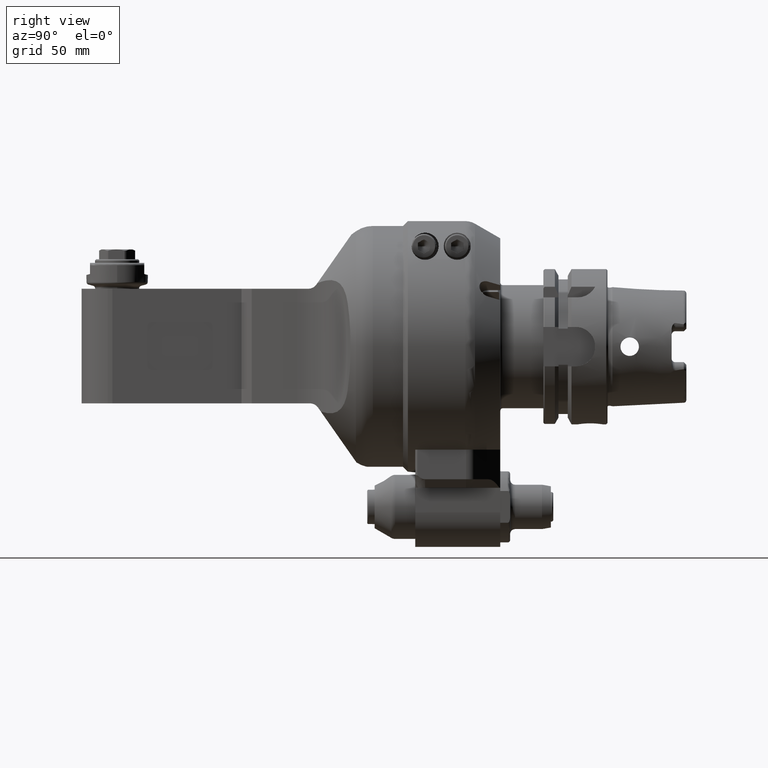
[diagram: clean part render]
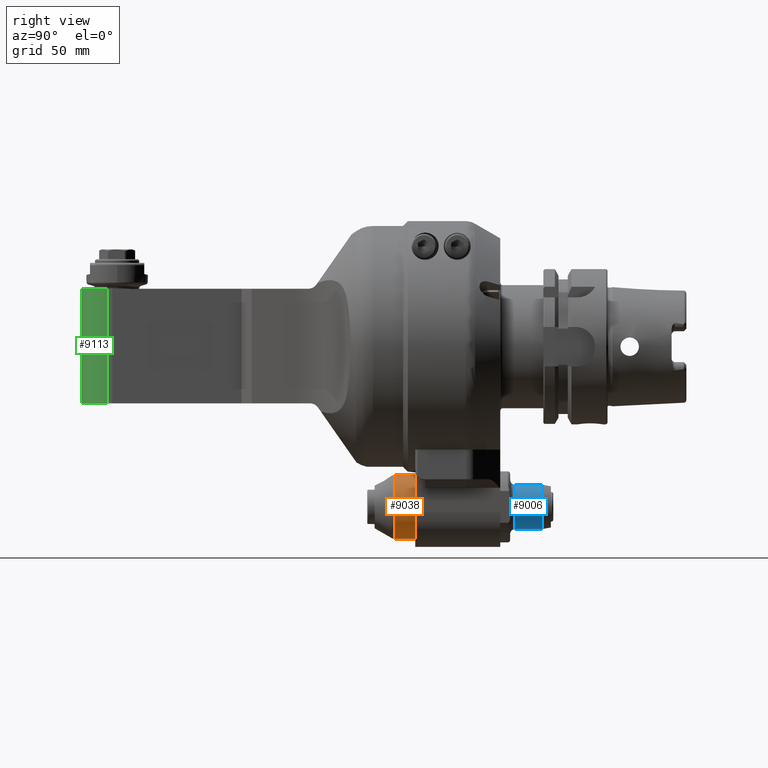
[diagram: same view with three faces highlighted in distinct colors, each labeled with its STEP entity id]
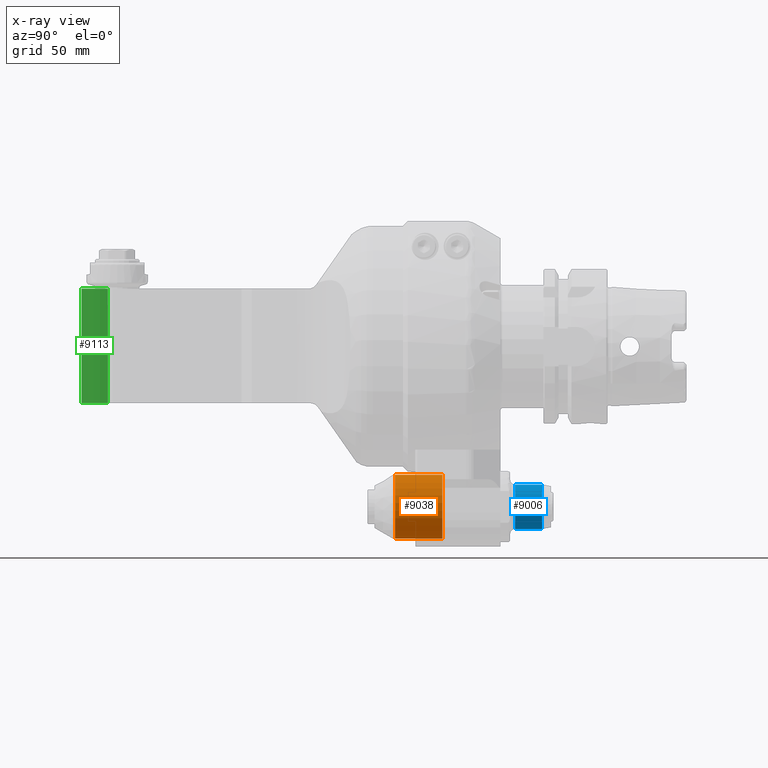
[diagram: x-ray of the same camera — body ghosted, the three highlighted faces saturated]
A machine part, right view with three faces highlighted in distinct colors.
The next image is the same camera in x-ray (body ghosted, the three faces saturated) — at least one of them is partly hidden behind the body in this view.
Their STEP definitions:

[orange] entity #9038 — the highlighted cylindrical surface (bore or boss wall) has radius 13 mm, axis along (0, -1, 0).
#957=FACE_OUTER_BOUND('',#1532,.T.);
#1532=EDGE_LOOP('',(#7571,#7572,#7573,#7574,#7575));
#2049=CIRCLE('',#9891,13.);
#2050=CIRCLE('',#9893,13.);
#2051=CIRCLE('',#9894,13.);
#2768=LINE('',#15925,#3407);
#3407=VECTOR('',#11870,13.);
#4206=VERTEX_POINT('',#15918);
#4207=VERTEX_POINT('',#15921);
#4208=VERTEX_POINT('',#15922);
#5383=EDGE_CURVE('',#4206,#4206,#2049,.T.);
#5384=EDGE_CURVE('',#4207,#4208,#2050,.T.);
#5385=EDGE_CURVE('',#4208,#4207,#2051,.T.);
#5386=EDGE_CURVE('',#4208,#4206,#2768,.T.);
#7571=ORIENTED_EDGE('',*,*,#5384,.F.);
#7572=ORIENTED_EDGE('',*,*,#5385,.F.);
#7573=ORIENTED_EDGE('',*,*,#5386,.T.);
#7574=ORIENTED_EDGE('',*,*,#5383,.F.);
#7575=ORIENTED_EDGE('',*,*,#5386,.F.);
#8651=CYLINDRICAL_SURFACE('',#9892,13.);
#9038=ADVANCED_FACE('',(#957),#8651,.T.);
#9891=AXIS2_PLACEMENT_3D('',#15919,#11862,#11863);
#9892=AXIS2_PLACEMENT_3D('',#15920,#11864,#11865);
#9893=AXIS2_PLACEMENT_3D('',#15923,#11866,#11867);
#9894=AXIS2_PLACEMENT_3D('',#15924,#11868,#11869);
#11862=DIRECTION('center_axis',(0.,1.,0.));
#11863=DIRECTION('ref_axis',(0.,0.,-1.));
#11864=DIRECTION('center_axis',(0.,-1.,0.));
#11865=DIRECTION('ref_axis',(0.,0.,-1.));
#11866=DIRECTION('center_axis',(0.,-1.,0.));
#11867=DIRECTION('ref_axis',(0.,0.,1.));
#11868=DIRECTION('center_axis',(0.,-1.,0.));
#11869=DIRECTION('ref_axis',(0.,0.,1.));
#11870=DIRECTION('',(0.,1.,0.));
#15918=CARTESIAN_POINT('',(-1.59204083889156E-15,16.,-52.));
#15919=CARTESIAN_POINT('Origin',(0.,16.,-65.));
#15920=CARTESIAN_POINT('Origin',(0.,5.,-65.));
#15921=CARTESIAN_POINT('',(0.,-3.196152422707,-78.));
#15922=CARTESIAN_POINT('',(-1.59204083889156E-15,-3.196152422707,-52.));
#15923=CARTESIAN_POINT('Origin',(0.,-3.196152422707,-65.));
#15924=CARTESIAN_POINT('Origin',(0.,-3.196152422707,-65.));
#15925=CARTESIAN_POINT('',(-1.59204083889156E-15,5.,-52.));

[blue] entity #9006 — the highlighted cylindrical surface (bore or boss wall) has radius 9 mm, axis along (0, 1, 0).
#925=FACE_OUTER_BOUND('',#1494,.T.);
#1494=EDGE_LOOP('',(#7431,#7432,#7433,#7434,#7435,#7436));
#2030=CIRCLE('',#9840,9.);
#2031=CIRCLE('',#9841,9.);
#2033=CIRCLE('',#9844,9.);
#2034=CIRCLE('',#9845,9.);
#2742=LINE('',#15718,#3381);
#3381=VECTOR('',#11744,9.);
#4172=VERTEX_POINT('',#15709);
#4173=VERTEX_POINT('',#15710);
#4174=VERTEX_POINT('',#15715);
#4175=VERTEX_POINT('',#15716);
#5324=EDGE_CURVE('',#4172,#4173,#2030,.T.);
#5325=EDGE_CURVE('',#4173,#4172,#2031,.T.);
#5327=EDGE_CURVE('',#4174,#4175,#2033,.T.);
#5328=EDGE_CURVE('',#4175,#4172,#2742,.T.);
#5329=EDGE_CURVE('',#4175,#4174,#2034,.T.);
#7431=ORIENTED_EDGE('',*,*,#5327,.T.);
#7432=ORIENTED_EDGE('',*,*,#5328,.T.);
#7433=ORIENTED_EDGE('',*,*,#5324,.T.);
#7434=ORIENTED_EDGE('',*,*,#5325,.T.);
#7435=ORIENTED_EDGE('',*,*,#5328,.F.);
#7436=ORIENTED_EDGE('',*,*,#5329,.T.);
#8640=CYLINDRICAL_SURFACE('',#9843,9.);
#9006=ADVANCED_FACE('',(#925),#8640,.T.);
#9840=AXIS2_PLACEMENT_3D('',#15711,#11734,#11735);
#9841=AXIS2_PLACEMENT_3D('',#15712,#11736,#11737);
#9843=AXIS2_PLACEMENT_3D('',#15714,#11740,#11741);
#9844=AXIS2_PLACEMENT_3D('',#15717,#11742,#11743);
#9845=AXIS2_PLACEMENT_3D('',#15719,#11745,#11746);
#11734=DIRECTION('center_axis',(0.,1.,0.));
#11735=DIRECTION('ref_axis',(0.,0.,-1.));
#11736=DIRECTION('center_axis',(0.,1.,0.));
#11737=DIRECTION('ref_axis',(0.,0.,-1.));
#11740=DIRECTION('center_axis',(0.,1.,0.));
#11741=DIRECTION('ref_axis',(0.,0.,1.));
#11742=DIRECTION('center_axis',(0.,-1.,0.));
#11743=DIRECTION('ref_axis',(0.,0.,-1.));
#11744=DIRECTION('',(0.,-1.,0.));
#11745=DIRECTION('center_axis',(0.,-1.,0.));
#11746=DIRECTION('ref_axis',(0.,0.,-1.));
#15709=CARTESIAN_POINT('',(0.,45.5,-74.));
#15710=CARTESIAN_POINT('',(-0.179267999534907,45.5,-56.0017855668837));
#15711=CARTESIAN_POINT('Origin',(0.,45.5,-65.));
#15712=CARTESIAN_POINT('Origin',(0.,45.5,-65.));
#15714=CARTESIAN_POINT('Origin',(0.,27.975,-65.));
#15715=CARTESIAN_POINT('',(0.,56.4307975707,-56.));
#15716=CARTESIAN_POINT('',(-1.10218211923262E-15,56.4307975707,-74.));
#15717=CARTESIAN_POINT('Origin',(0.,56.4307975707,-65.));
#15718=CARTESIAN_POINT('',(-1.10218211923262E-15,27.975,-74.));
#15719=CARTESIAN_POINT('Origin',(0.,56.4307975707,-65.));

[green] entity #9113 — the highlighted cylindrical surface (edge-blend (fillet) strip) has radius 14.5 mm, axis along (-0, 0, -1).
#1032=FACE_OUTER_BOUND('',#1617,.T.);
#1617=EDGE_LOOP('',(#7929,#7930,#7931,#7932));
#2104=CIRCLE('',#10009,14.5);
#2109=CIRCLE('',#10021,14.5);
#2856=LINE('',#46010,#3495);
#2857=LINE('',#46012,#3496);
#3495=VECTOR('',#12216,46.5);
#3496=VECTOR('',#12219,46.5);
#4314=VERTEX_POINT('',#45891);
#4315=VERTEX_POINT('',#45893);
#4338=VERTEX_POINT('',#46002);
#4339=VERTEX_POINT('',#46004);
#5547=EDGE_CURVE('',#4314,#4315,#2104,.T.);
#5577=EDGE_CURVE('',#4338,#4339,#2109,.T.);
#5580=EDGE_CURVE('',#4314,#4339,#2856,.T.);
#5581=EDGE_CURVE('',#4338,#4315,#2857,.T.);
#7929=ORIENTED_EDGE('',*,*,#5547,.F.);
#7930=ORIENTED_EDGE('',*,*,#5580,.T.);
#7931=ORIENTED_EDGE('',*,*,#5577,.F.);
#7932=ORIENTED_EDGE('',*,*,#5581,.T.);
#8667=CYLINDRICAL_SURFACE('',#10024,14.5);
#9113=ADVANCED_FACE('',(#1032),#8667,.T.);
#10009=AXIS2_PLACEMENT_3D('',#45894,#12166,#12167);
#10021=AXIS2_PLACEMENT_3D('',#46005,#12209,#12210);
#10024=AXIS2_PLACEMENT_3D('',#46011,#12217,#12218);
#12166=DIRECTION('center_axis',(0.,1.,0.));
#12167=DIRECTION('ref_axis',(0.258819045102493,0.,0.965925826289076));
#12209=DIRECTION('center_axis',(0.,-1.,0.));
#12210=DIRECTION('ref_axis',(0.258819045102493,0.,-0.965925826289076));
#12216=DIRECTION('',(0.,-1.,0.));
#12217=DIRECTION('center_axis',(0.,1.,0.));
#12218=DIRECTION('ref_axis',(1.,0.,1.22464679914735E-16));
#12219=DIRECTION('',(0.,1.,0.));
#45891=CARTESIAN_POINT('',(136.752876154,23.,14.00592448119));
#45893=CARTESIAN_POINT('',(136.752876154,23.,-14.00592448119));
#45894=CARTESIAN_POINT('Origin',(133.,23.,0.));
#46002=CARTESIAN_POINT('',(136.752876154,-23.5,-14.00592448119));
#46004=CARTESIAN_POINT('',(136.752876154,-23.5,14.00592448119));
#46005=CARTESIAN_POINT('Origin',(133.,-23.5,0.));
#46010=CARTESIAN_POINT('',(136.752876154,23.,14.00592448119));
#46011=CARTESIAN_POINT('Origin',(133.,-66.95199937934,0.));
#46012=CARTESIAN_POINT('',(136.752876154,-23.5,-14.00592448119));